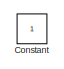
[diagram: root canvas - part 1/2, top left region]
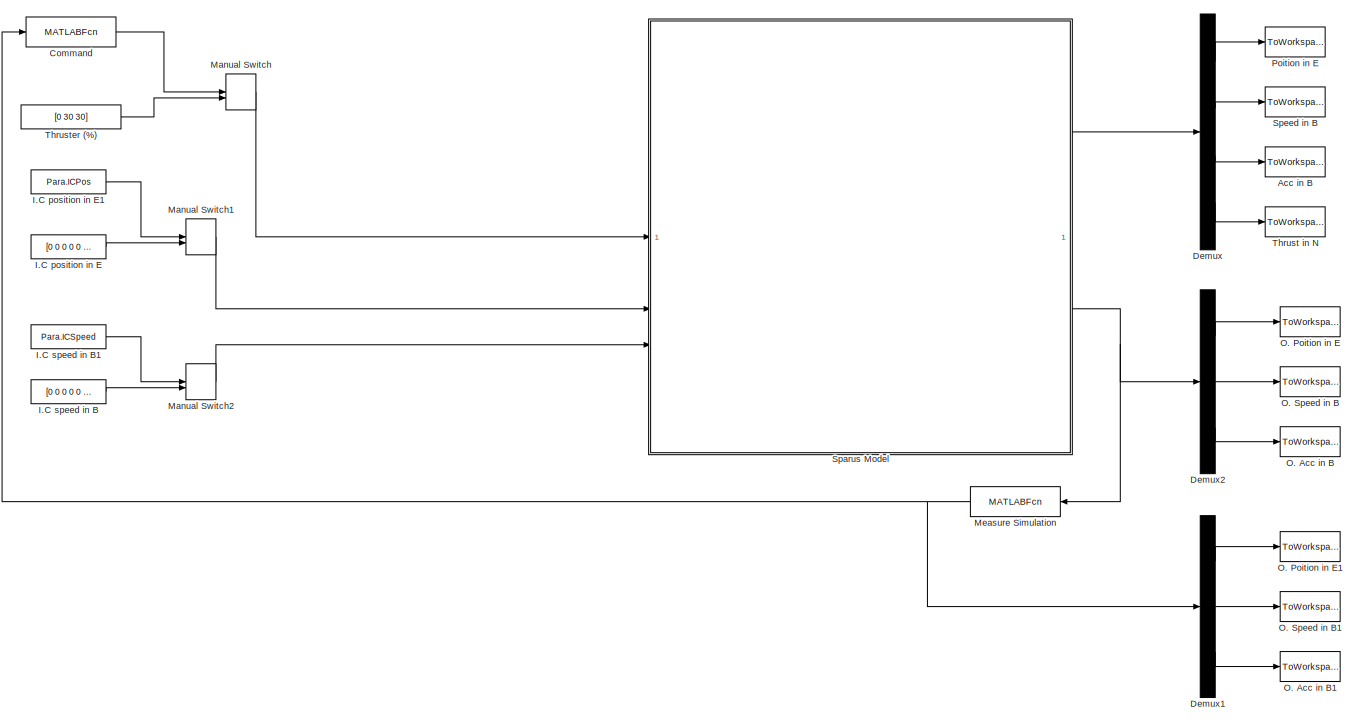
[diagram: root canvas - part 2/2, most of the canvas]
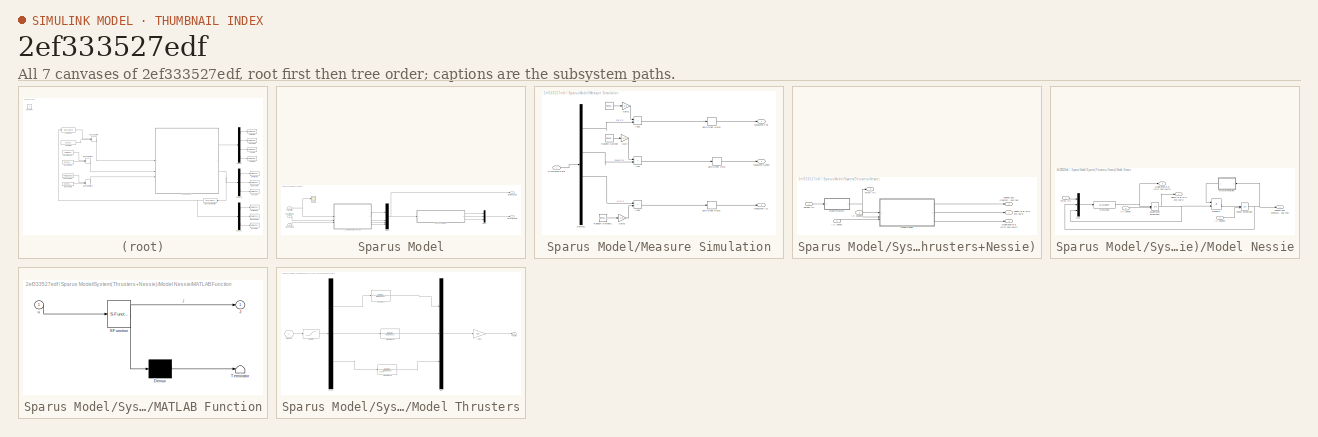
[diagram: thumbnail index - all 7 canvases of the model, root first then tree order]
MODEL mdl_2ef333527edf
KIND model
CONFIG AbsTol = auto
CONFIG EnableMultiTasking = on
CONFIG FixedStep = 0.1
CONFIG InitFcn = Para=Parameters()
CONFIG MaxStep = auto
CONFIG MinStep = auto
CONFIG RelTol = 1e-3
CONFIG SampleTimeConstraint = Unconstrained
CONFIG SolverName = ode3
CONFIG StartTime = 0.0
CONFIG StopFcn = Plotting
CONFIG StopTime = 20
BLOCK [ToWorkspace] Acc in B
  FixptAsFi = on
  MaxDataPoints = inf
  SampleTime = -1
  VariableName = AccB_S
BLOCK [MATLABFcn] Command
  MATLABFcn = Command(u(1:6),u(7:12),u(13:18))
  OutputDimensions = 3
  OutputSignalType = real
BLOCK [Constant] Constant
  IOType = siggen
BLOCK [Demux] Demux
  Outputs = [6 6 6 3]
BLOCK [Demux] Demux1
  Outputs = 3
BLOCK [Demux] Demux2
  Outputs = [6 6 6]
BLOCK [Constant] I.C position in E
  Value = [0 0 0 0 0 0]
BLOCK [Constant] I.C position in E1
  Value = Para.ICPos
BLOCK [Constant] I.C speed in B
  Value = [0 0 0 0 0 0]
BLOCK [Constant] I.C speed in B1
  Value = Para.ICSpeed
BLOCK [ManualSwitch] Manual Switch
  CurrentSetting = 0
BLOCK [ManualSwitch] Manual Switch1
  CurrentSetting = 0
BLOCK [ManualSwitch] Manual Switch2
  CurrentSetting = 0
BLOCK [MATLABFcn] Measure Simulation
  MATLABFcn = MeaSim(u(1:6),u(7:12),u(13:18))
  OutputDimensions = 18
  OutputSignalType = real
BLOCK [ToWorkspace] O. Acc in B
  FixptAsFi = on
  MaxDataPoints = inf
  SampleTime = -1
  VariableName = AccG
BLOCK [ToWorkspace] O. Acc in B1
  FixptAsFi = on
  MaxDataPoints = inf
  SampleTime = -1
  VariableName = AccG_M
BLOCK [ToWorkspace] O. Poition in E
  FixptAsFi = on
  MaxDataPoints = inf
  SampleTime = -1
  VariableName = PosE
BLOCK [ToWorkspace] O. Poition in E1
  FixptAsFi = on
  MaxDataPoints = inf
  SampleTime = -1
  VariableName = PosE_M
BLOCK [ToWorkspace] O. Speed in B
  FixptAsFi = on
  MaxDataPoints = inf
  SampleTime = -1
  VariableName = VitG
BLOCK [ToWorkspace] O. Speed in B1
  FixptAsFi = on
  MaxDataPoints = inf
  SampleTime = -1
  VariableName = VitG_M
BLOCK [ToWorkspace] Poition in E
  FixptAsFi = on
  MaxDataPoints = inf
  SampleTime = -1
  VariableName = PosE_S
BLOCK [SubSystem] Sparus Model
BLOCK [Inport] Sparus Model/I.C position in E
  Port = 2
BLOCK [Inport] Sparus Model/I.C speed in B 
  Port = 3
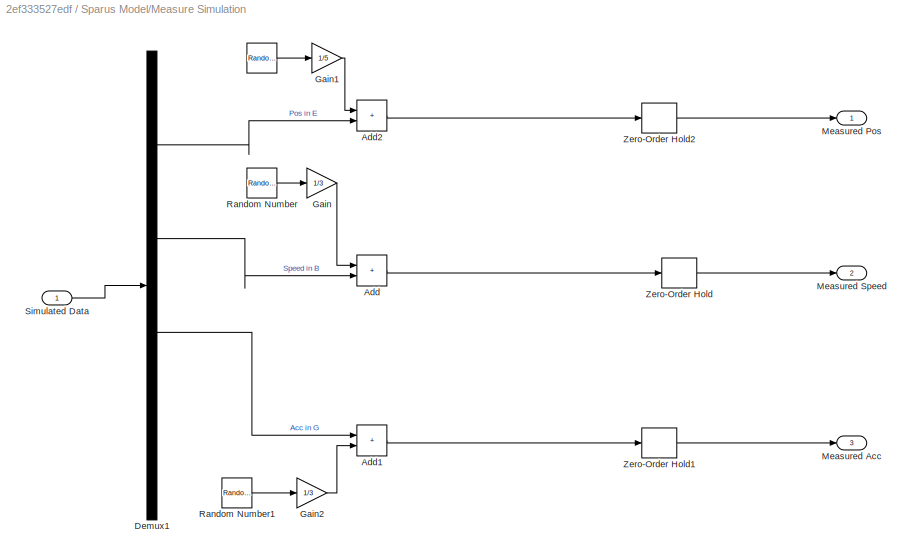
BLOCK [SubSystem] Sparus Model/Measure Simulation
BLOCK [RandomNumber] Sparus Model/Measure Simulation/ 
  Variance = 0.01
BLOCK [Sum] Sparus Model/Measure Simulation/Add
  IconShape = rectangular
BLOCK [Sum] Sparus Model/Measure Simulation/Add1
  IconShape = rectangular
BLOCK [Sum] Sparus Model/Measure Simulation/Add2
  IconShape = rectangular
BLOCK [Demux] Sparus Model/Measure Simulation/Demux1
  Outputs = [6 6 6 3]
BLOCK [Gain] Sparus Model/Measure Simulation/Gain
  Gain = 1/3
BLOCK [Gain] Sparus Model/Measure Simulation/Gain1
  Gain = 1/5
BLOCK [Gain] Sparus Model/Measure Simulation/Gain2
  Gain = 1/3
BLOCK [Outport] Sparus Model/Measure Simulation/Measured Acc
  Port = 3
BLOCK [Outport] Sparus Model/Measure Simulation/Measured Pos
  NameLocation = top
BLOCK [Outport] Sparus Model/Measure Simulation/Measured Speed
  NameLocation = top
  Port = 2
BLOCK [RandomNumber] Sparus Model/Measure Simulation/Random Number
  Variance = 0.01
BLOCK [RandomNumber] Sparus Model/Measure Simulation/Random Number1
  Variance = 0.1
BLOCK [Inport] Sparus Model/Measure Simulation/Simulated Data 
BLOCK [ZeroOrderHold] Sparus Model/Measure Simulation/Zero-Order Hold
  SampleTime = -1
BLOCK [ZeroOrderHold] Sparus Model/Measure Simulation/Zero-Order Hold1
  SampleTime = -1
BLOCK [ZeroOrderHold] Sparus Model/Measure Simulation/Zero-Order Hold2
  SampleTime = -1
BLOCK [Outport] Sparus Model/Measured Data 
  Port = 2
BLOCK [Mux] Sparus Model/Mux1
  DisplayOption = bar
  Inputs = 3
BLOCK [Mux] Sparus Model/Mux3
  DisplayOption = bar
BLOCK [Scope] Sparus Model/Scope
  Floating = off
  NumInputPorts = 1
  ScopeSpecificationString = Simulink.scopes.TimeScopeBlockCfg('CurrentConfiguration', extmgr.ConfigurationSet(extmgr.Configuration('Core','General UI',true),extmgr.Configuration('Core','Source UI',true),extmgr.Configuration('Sources','WiredSimulink',true),extmgr.Configuration('Visuals','Time Domain',true,'SerializedDisplays',{struct('MinYLimReal','-2.5','MaxYLimReal','22.5','YLabelReal','','MinYLimMag','0.00000','MaxYLimMag'...<+1437ch>
BLOCK [Outport] Sparus Model/Simulated Data
BLOCK [SubSystem] Sparus Model/System(Thrusters+Nessie)
BLOCK [Outport] Sparus Model/System(Thrusters+Nessie)/Acceleration in B (m//s² and rad//s²)
  Port = 3
BLOCK [Inport] Sparus Model/System(Thrusters+Nessie)/I.C position
  Port = 2
BLOCK [Inport] Sparus Model/System(Thrusters+Nessie)/I.C speed
  Port = 3
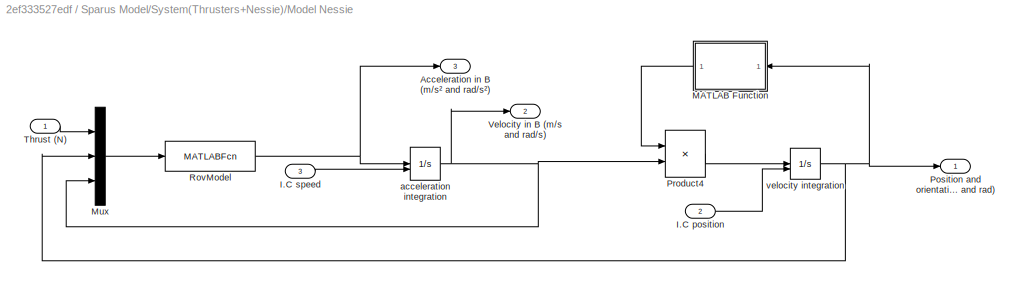
BLOCK [SubSystem] Sparus Model/System(Thrusters+Nessie)/Model Nessie
BLOCK [Outport] Sparus Model/System(Thrusters+Nessie)/Model Nessie/Acceleration in B (m//s² and rad//s²)
  Port = 3
BLOCK [Inport] Sparus Model/System(Thrusters+Nessie)/Model Nessie/I.C position
  Port = 2
BLOCK [Inport] Sparus Model/System(Thrusters+Nessie)/Model Nessie/I.C speed
  Port = 3
BLOCK [SubSystem] Sparus Model/System(Thrusters+Nessie)/Model Nessie/MATLAB Function
  ErrorFcn = Stateflow.Translate.translate
  PermitHierarchicalResolution = ExplicitOnly
  SFBlockType = MATLAB Function
  TreatAsAtomicUnit = on
BLOCK [Demux] Sparus Model/System(Thrusters+Nessie)/Model Nessie/MATLAB Function/ Demux 
  Outputs = 1
BLOCK [S-Function] Sparus Model/System(Thrusters+Nessie)/Model Nessie/MATLAB Function/ SFunction 
  EnableBusSupport = on
  FunctionName = sf_sfun
  PortCounts = [1 2]
  SFcnIsStateOwnerBlock = off
  SFunctionDeploymentMode = off
  Tag = Stateflow S-Function 2
BLOCK [Terminator] Sparus Model/System(Thrusters+Nessie)/Model Nessie/MATLAB Function/ Terminator 
BLOCK [Outport] Sparus Model/System(Thrusters+Nessie)/Model Nessie/MATLAB Function/J
BLOCK [Inport] Sparus Model/System(Thrusters+Nessie)/Model Nessie/MATLAB Function/u
BLOCK [Mux] Sparus Model/System(Thrusters+Nessie)/Model Nessie/Mux
  DisplayOption = bar
  Inputs = 3
BLOCK [Outport] Sparus Model/System(Thrusters+Nessie)/Model Nessie/Position and orientation in E (m and rad)
BLOCK [Product] Sparus Model/System(Thrusters+Nessie)/Model Nessie/Product4
  Multiplication = Matrix(*)
  RndMeth = Zero
BLOCK [MATLABFcn] Sparus Model/System(Thrusters+Nessie)/Model Nessie/RovModel
  MATLABFcn = RovModel(u(1:3),u(4:9),u(10:15))
  OutputDimensions = 6
  OutputSignalType = real
BLOCK [Inport] Sparus Model/System(Thrusters+Nessie)/Model Nessie/Thrust (N)
BLOCK [Outport] Sparus Model/System(Thrusters+Nessie)/Model Nessie/Velocity in B (m//s and rad//s)
  Port = 2
BLOCK [Integrator] Sparus Model/System(Thrusters+Nessie)/Model Nessie/acceleration integration
  InitialCondition = [0 0 0 0 0 0]
  InitialConditionSource = external
BLOCK [Integrator] Sparus Model/System(Thrusters+Nessie)/Model Nessie/velocity integration
  InitialConditionSource = external
BLOCK [SubSystem] Sparus Model/System(Thrusters+Nessie)/Model Thrusters
BLOCK [Demux] Sparus Model/System(Thrusters+Nessie)/Model Thrusters/Demux
  Outputs = 3
BLOCK [Gain] Sparus Model/System(Thrusters+Nessie)/Model Thrusters/Gain6
  Gain = 0.01
BLOCK [Mux] Sparus Model/System(Thrusters+Nessie)/Model Thrusters/Mux
  DisplayOption = bar
  Inputs = 3
BLOCK [Saturate] Sparus Model/System(Thrusters+Nessie)/Model Thrusters/Saturation
  LowerLimit = -100
  UpperLimit = 100
BLOCK [Outport] Sparus Model/System(Thrusters+Nessie)/Model Thrusters/Thrust (N)
BLOCK [TransferFcn] Sparus Model/System(Thrusters+Nessie)/Model Thrusters/Transfer Fcn
  Denominator = [Para.Tau1 1]
  Numerator = [Para.kt1]
BLOCK [TransferFcn] Sparus Model/System(Thrusters+Nessie)/Model Thrusters/Transfer Fcn1
  Denominator = [Para.Tau2 1]
  Numerator = [Para.kt2]
BLOCK [TransferFcn] Sparus Model/System(Thrusters+Nessie)/Model Thrusters/Transfer Fcn2
  Denominator = [Para.Tau3 1]
  Numerator = [Para.kt3]
BLOCK [Inport] Sparus Model/System(Thrusters+Nessie)/Model Thrusters/Voltage (%)
BLOCK [Outport] Sparus Model/System(Thrusters+Nessie)/Position and Orientation in E (m and rad)
BLOCK [Outport] Sparus Model/System(Thrusters+Nessie)/Thrust (N)
  Port = 4
BLOCK [Outport] Sparus Model/System(Thrusters+Nessie)/Velocity in B (m//s and rad//s)
  Port = 2
BLOCK [Inport] Sparus Model/System(Thrusters+Nessie)/Voltage (%)
BLOCK [Inport] Sparus Model/Thruster (%)
BLOCK [ToWorkspace] Speed in B
  FixptAsFi = on
  MaxDataPoints = inf
  SampleTime = -1
  VariableName = VitB_S
BLOCK [ToWorkspace] Thrust in N
  FixptAsFi = on
  MaxDataPoints = inf
  SampleTime = -1
  VariableName = Thrust_S
BLOCK [Constant] Thruster (%)
  Value = [0 30 30]
ANNOTATION Sparus Model/System(Thrusters+Nessie)/Model Thrusters: Para.kt3
LINE Command:1 -> Manual Switch:1
LINE Demux1:1 -> O. Poition in E1:1
LINE Demux1:2 -> O. Speed in B1:1
LINE Demux1:3 -> O. Acc in B1:1
LINE Demux2:1 -> O. Poition in E:1
LINE Demux2:2 -> O. Speed in B:1
LINE Demux2:3 -> O. Acc in B:1
LINE Demux:1 -> Poition in E:1
LINE Demux:2 -> Speed in B:1
LINE Demux:3 -> Acc in B:1
LINE Demux:4 -> Thrust in N:1
LINE I.C position in E1:1 -> Manual Switch1:1
LINE I.C position in E:1 -> Manual Switch1:2
LINE I.C speed in B1:1 -> Manual Switch2:1
LINE I.C speed in B:1 -> Manual Switch2:2
LINE Manual Switch1:1 -> Sparus Model:2
LINE Manual Switch2:1 -> Sparus Model:3
LINE Manual Switch:1 -> Sparus Model:1
NET Measure Simulation:1 -> Command:1, Demux1:1
LINE Sparus Model/I.C position in E:1 -> Sparus Model/System(Thrusters+Nessie):2
LINE Sparus Model/I.C speed in B :1 -> Sparus Model/System(Thrusters+Nessie):3
LINE Sparus Model/Measure Simulation/ :1 -> Sparus Model/Measure Simulation/Gain1:1
LINE Sparus Model/Measure Simulation/Add1:1 -> Sparus Model/Measure Simulation/Zero-Order Hold1:1
LINE Sparus Model/Measure Simulation/Add2:1 -> Sparus Model/Measure Simulation/Zero-Order Hold2:1
LINE Sparus Model/Measure Simulation/Add:1 -> Sparus Model/Measure Simulation/Zero-Order Hold:1
LINE Sparus Model/Measure Simulation/Demux1:1 -> Sparus Model/Measure Simulation/Add2:2
LINE Sparus Model/Measure Simulation/Demux1:2 -> Sparus Model/Measure Simulation/Add:2
LINE Sparus Model/Measure Simulation/Demux1:3 -> Sparus Model/Measure Simulation/Add1:1
LINE Sparus Model/Measure Simulation/Gain1:1 -> Sparus Model/Measure Simulation/Add2:1
LINE Sparus Model/Measure Simulation/Gain2:1 -> Sparus Model/Measure Simulation/Add1:2
LINE Sparus Model/Measure Simulation/Gain:1 -> Sparus Model/Measure Simulation/Add:1
LINE Sparus Model/Measure Simulation/Random Number1:1 -> Sparus Model/Measure Simulation/Gain2:1
LINE Sparus Model/Measure Simulation/Random Number:1 -> Sparus Model/Measure Simulation/Gain:1
LINE Sparus Model/Measure Simulation/Simulated Data :1 -> Sparus Model/Measure Simulation/Demux1:1
LINE Sparus Model/Measure Simulation/Zero-Order Hold1:1 -> Sparus Model/Measure Simulation/Measured Acc:1
LINE Sparus Model/Measure Simulation/Zero-Order Hold2:1 -> Sparus Model/Measure Simulation/Measured Pos:1
LINE Sparus Model/Measure Simulation/Zero-Order Hold:1 -> Sparus Model/Measure Simulation/Measured Speed:1
LINE Sparus Model/Measure Simulation:1 -> Sparus Model/Mux1:1
LINE Sparus Model/Measure Simulation:2 -> Sparus Model/Mux1:2
LINE Sparus Model/Measure Simulation:3 -> Sparus Model/Mux1:3
LINE Sparus Model/Mux1:1 -> Sparus Model/Measured Data :1
NET Sparus Model/Mux3:1 -> Sparus Model/Measure Simulation:1, Sparus Model/Simulated Data:1
LINE Sparus Model/System(Thrusters+Nessie)/I.C position:1 -> Sparus Model/System(Thrusters+Nessie)/Model Nessie:2
LINE Sparus Model/System(Thrusters+Nessie)/I.C speed:1 -> Sparus Model/System(Thrusters+Nessie)/Model Nessie:3
LINE Sparus Model/System(Thrusters+Nessie)/Model Nessie/I.C position:1 -> Sparus Model/System(Thrusters+Nessie)/Model Nessie/velocity integration:2
LINE Sparus Model/System(Thrusters+Nessie)/Model Nessie/I.C speed:1 -> Sparus Model/System(Thrusters+Nessie)/Model Nessie/acceleration integration:2
LINE Sparus Model/System(Thrusters+Nessie)/Model Nessie/MATLAB Function:1 -> Sparus Model/System(Thrusters+Nessie)/Model Nessie/Product4:1
LINE Sparus Model/System(Thrusters+Nessie)/Model Nessie/Mux:1 -> Sparus Model/System(Thrusters+Nessie)/Model Nessie/RovModel:1
LINE Sparus Model/System(Thrusters+Nessie)/Model Nessie/Product4:1 -> Sparus Model/System(Thrusters+Nessie)/Model Nessie/velocity integration:1
NET Sparus Model/System(Thrusters+Nessie)/Model Nessie/RovModel:1 -> Sparus Model/System(Thrusters+Nessie)/Model Nessie/Acceleration in B (m//s² and rad//s²):1, Sparus Model/System(Thrusters+Nessie)/Model Nessie/acceleration integration:1
LINE Sparus Model/System(Thrusters+Nessie)/Model Nessie/Thrust (N):1 -> Sparus Model/System(Thrusters+Nessie)/Model Nessie/Mux:1
NET Sparus Model/System(Thrusters+Nessie)/Model Nessie/acceleration integration:1 -> Sparus Model/System(Thrusters+Nessie)/Model Nessie/Mux:3, Sparus Model/System(Thrusters+Nessie)/Model Nessie/Product4:2, Sparus Model/System(Thrusters+Nessie)/Model Nessie/Velocity in B (m//s and rad//s):1
NET Sparus Model/System(Thrusters+Nessie)/Model Nessie/velocity integration:1 -> Sparus Model/System(Thrusters+Nessie)/Model Nessie/MATLAB Function:1, Sparus Model/System(Thrusters+Nessie)/Model Nessie/Mux:2, Sparus Model/System(Thrusters+Nessie)/Model Nessie/Position and orientation in E (m and rad):1
LINE Sparus Model/System(Thrusters+Nessie)/Model Nessie:1 -> Sparus Model/System(Thrusters+Nessie)/Position and Orientation in E (m and rad):1
LINE Sparus Model/System(Thrusters+Nessie)/Model Nessie:2 -> Sparus Model/System(Thrusters+Nessie)/Velocity in B (m//s and rad//s):1
LINE Sparus Model/System(Thrusters+Nessie)/Model Nessie:3 -> Sparus Model/System(Thrusters+Nessie)/Acceleration in B (m//s² and rad//s²):1
LINE Sparus Model/System(Thrusters+Nessie)/Model Thrusters/Demux:1 -> Sparus Model/System(Thrusters+Nessie)/Model Thrusters/Transfer Fcn:1
LINE Sparus Model/System(Thrusters+Nessie)/Model Thrusters/Demux:2 -> Sparus Model/System(Thrusters+Nessie)/Model Thrusters/Transfer Fcn1:1
LINE Sparus Model/System(Thrusters+Nessie)/Model Thrusters/Demux:3 -> Sparus Model/System(Thrusters+Nessie)/Model Thrusters/Transfer Fcn2:1
LINE Sparus Model/System(Thrusters+Nessie)/Model Thrusters/Gain6:1 -> Sparus Model/System(Thrusters+Nessie)/Model Thrusters/Thrust (N):1
LINE Sparus Model/System(Thrusters+Nessie)/Model Thrusters/Mux:1 -> Sparus Model/System(Thrusters+Nessie)/Model Thrusters/Gain6:1
LINE Sparus Model/System(Thrusters+Nessie)/Model Thrusters/Saturation:1 -> Sparus Model/System(Thrusters+Nessie)/Model Thrusters/Demux:1
LINE Sparus Model/System(Thrusters+Nessie)/Model Thrusters/Transfer Fcn1:1 -> Sparus Model/System(Thrusters+Nessie)/Model Thrusters/Mux:2
LINE Sparus Model/System(Thrusters+Nessie)/Model Thrusters/Transfer Fcn2:1 -> Sparus Model/System(Thrusters+Nessie)/Model Thrusters/Mux:3
LINE Sparus Model/System(Thrusters+Nessie)/Model Thrusters/Transfer Fcn:1 -> Sparus Model/System(Thrusters+Nessie)/Model Thrusters/Mux:1
LINE Sparus Model/System(Thrusters+Nessie)/Model Thrusters/Voltage (%):1 -> Sparus Model/System(Thrusters+Nessie)/Model Thrusters/Saturation:1
NET Sparus Model/System(Thrusters+Nessie)/Model Thrusters:1 -> Sparus Model/System(Thrusters+Nessie)/Model Nessie:1, Sparus Model/System(Thrusters+Nessie)/Thrust (N):1
LINE Sparus Model/System(Thrusters+Nessie)/Voltage (%):1 -> Sparus Model/System(Thrusters+Nessie)/Model Thrusters:1
LINE Sparus Model/System(Thrusters+Nessie):1 -> Sparus Model/Mux3:1
LINE Sparus Model/System(Thrusters+Nessie):2 -> Sparus Model/Mux3:2
LINE Sparus Model/System(Thrusters+Nessie):3 -> Sparus Model/Mux3:3
LINE Sparus Model/System(Thrusters+Nessie):4 -> Sparus Model/Mux3:4
NET Sparus Model/Thruster (%):1 -> Sparus Model/Scope:1, Sparus Model/System(Thrusters+Nessie):1
LINE Sparus Model:1 -> Demux:1
NET Sparus Model:2 -> Demux2:1, Measure Simulation:1
LINE Thruster (%):1 -> Manual Switch:2
note: NET lines group one-source signal fan-out (src -> all destinations, sorted); 1:1 wires keep LINE
CHART Sparus Model/System(Thrusters+Nessie)/Model Nessie/MATLAB Function states=1 transitions=1
  STATE_LABEL 'eML_blk_kernel()'
  STATE_LABEL 'SCRIPT:\nfunction J = fcn(u)\n\n[~ , ~ , J] = jacobienne(u);\n\nend\n'
CHART  states=0 transitions=0
